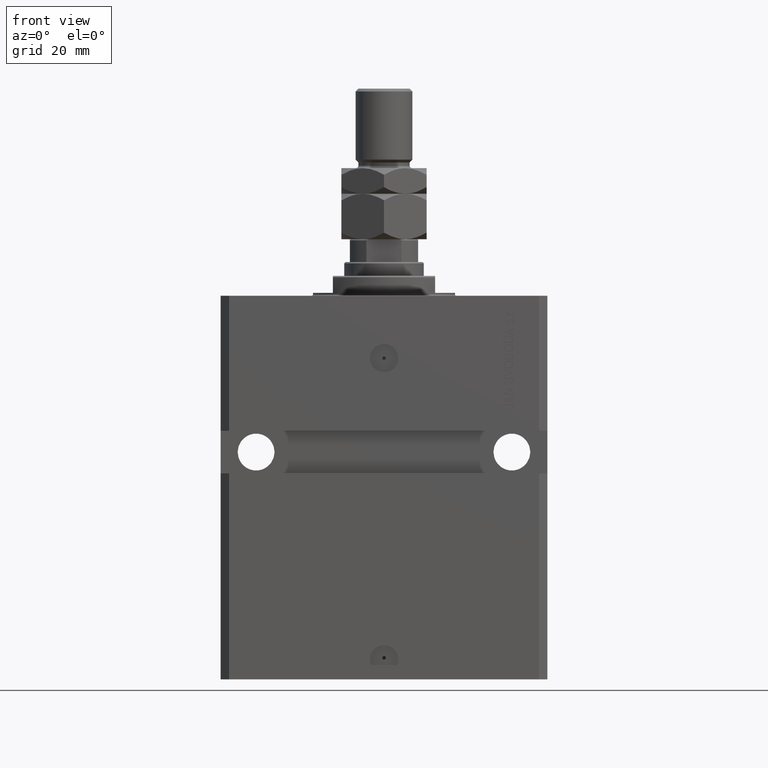
[diagram: clean part render]
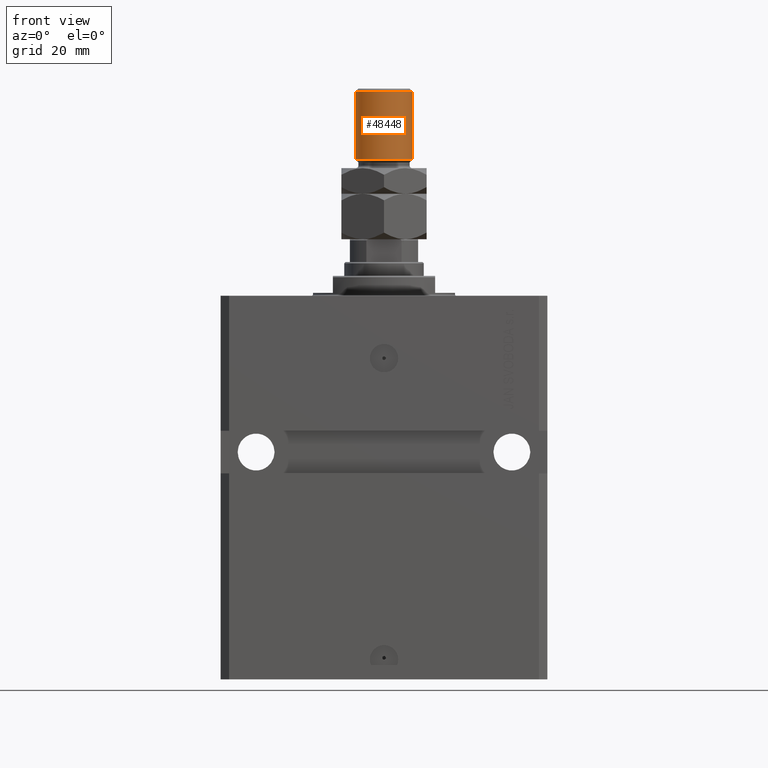
[diagram: same view with one face highlighted and labeled with its STEP entity id]
A machine part, front view. The second image highlights one B-rep face of the part: STEP entity #48448.
In plain terms, the highlighted cylindrical surface (edge-blend (fillet) strip) has radius 10 mm, axis along (-0, -0, -1).
Its self-contained STEP definition (entity closure, byte-faithful):
#151 = EDGE_LOOP ( 'NONE', ( #23999, #26237, #3555, #42219 ) ) ;
#1278 = CYLINDRICAL_SURFACE ( 'NONE', #42899, 10.00000000000000000 ) ;
#1757 = EDGE_CURVE ( 'NONE', #10550, #34069, #16102, .T. ) ;
#3555 = ORIENTED_EDGE ( 'NONE', *, *, #11873, .T. ) ;
#4926 = LINE ( 'NONE', #5687, #47218 ) ;
#5687 = CARTESIAN_POINT ( 'NONE',  ( 10.00000000000000000, 1.224646799147353059E-15, 53.00000000000000711 ) ) ;
#5861 = DIRECTION ( 'NONE',  ( -1.000000000000000000, 0.000000000000000000, 0.000000000000000000 ) ) ;
#6239 = DIRECTION ( 'NONE',  ( 0.000000000000000000, 0.000000000000000000, -1.000000000000000000 ) ) ;
#8198 = VERTEX_POINT ( 'NONE', #14154 ) ;
#9618 = CIRCLE ( 'NONE', #40431, 10.00000000000000000 ) ;
#10550 = VERTEX_POINT ( 'NONE', #45766 ) ;
#11873 = EDGE_CURVE ( 'NONE', #8198, #10550, #39156, .T. ) ;
#14154 = CARTESIAN_POINT ( 'NONE',  ( -10.00000000000000000, 0.000000000000000000, 52.00000000000004974 ) ) ;
#14345 = CARTESIAN_POINT ( 'NONE',  ( 0.000000000000000000, 0.000000000000000000, 28.00000000000002487 ) ) ;
#16102 = CIRCLE ( 'NONE', #43703, 10.00000000000000000 ) ;
#17611 = VERTEX_POINT ( 'NONE', #18931 ) ;
#18931 = CARTESIAN_POINT ( 'NONE',  ( 10.00000000000000000, 1.224646799147353059E-15, 52.00000000000004974 ) ) ;
#19610 = CARTESIAN_POINT ( 'NONE',  ( -10.00000000000000000, 0.000000000000000000, 53.00000000000000711 ) ) ;
#20290 = EDGE_CURVE ( 'NONE', #17611, #8198, #9618, .T. ) ;
#23999 = ORIENTED_EDGE ( 'NONE', *, *, #32007, .F. ) ;
#25750 = DIRECTION ( 'NONE',  ( 1.000000000000000000, 0.000000000000000000, 0.000000000000000000 ) ) ;
#26237 = ORIENTED_EDGE ( 'NONE', *, *, #20290, .T. ) ;
#28255 = CARTESIAN_POINT ( 'NONE',  ( 10.00000000000000000, 1.224646799147353059E-15, 28.00000000000002487 ) ) ;
#30102 = DIRECTION ( 'NONE',  ( 1.000000000000000000, 0.000000000000000000, 0.000000000000000000 ) ) ;
#31270 = DIRECTION ( 'NONE',  ( -0.000000000000000000, -0.000000000000000000, -1.000000000000000000 ) ) ;
#32007 = EDGE_CURVE ( 'NONE', #17611, #34069, #4926, .T. ) ;
#34069 = VERTEX_POINT ( 'NONE', #28255 ) ;
#36045 = FACE_OUTER_BOUND ( 'NONE', #151, .T. ) ;
#39156 = LINE ( 'NONE', #19610, #45982 ) ;
#40126 = DIRECTION ( 'NONE',  ( -0.000000000000000000, -0.000000000000000000, -1.000000000000000000 ) ) ;
#40431 = AXIS2_PLACEMENT_3D ( 'NONE', #49455, #6239, #30102 ) ;
#42219 = ORIENTED_EDGE ( 'NONE', *, *, #1757, .T. ) ;
#42899 = AXIS2_PLACEMENT_3D ( 'NONE', #43964, #40126, #5861 ) ;
#43528 = DIRECTION ( 'NONE',  ( -0.000000000000000000, -0.000000000000000000, -1.000000000000000000 ) ) ;
#43703 = AXIS2_PLACEMENT_3D ( 'NONE', #14345, #49432, #25750 ) ;
#43964 = CARTESIAN_POINT ( 'NONE',  ( 0.000000000000000000, 0.000000000000000000, 53.00000000000000711 ) ) ;
#45766 = CARTESIAN_POINT ( 'NONE',  ( -10.00000000000000000, 0.000000000000000000, 28.00000000000002487 ) ) ;
#45982 = VECTOR ( 'NONE', #31270, 1000.000000000000000 ) ;
#47218 = VECTOR ( 'NONE', #43528, 1000.000000000000000 ) ;
#48448 = ADVANCED_FACE ( 'NONE', ( #36045 ), #1278, .T. ) ;
#49432 = DIRECTION ( 'NONE',  ( -0.000000000000000000, -0.000000000000000000, 1.000000000000000000 ) ) ;
#49455 = CARTESIAN_POINT ( 'NONE',  ( 0.000000000000000000, 0.000000000000000000, 52.00000000000004974 ) ) ;